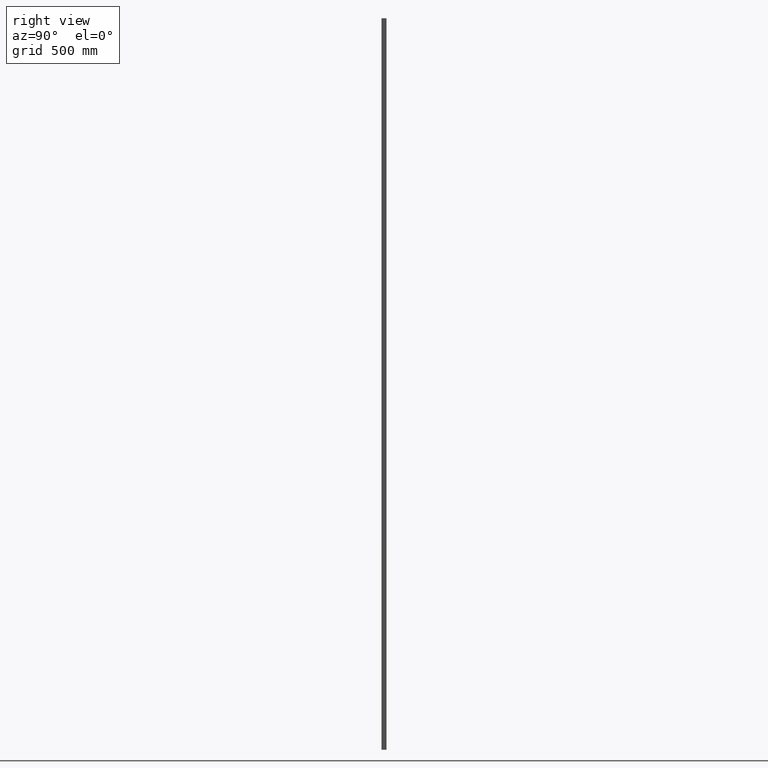
[diagram: clean part render]
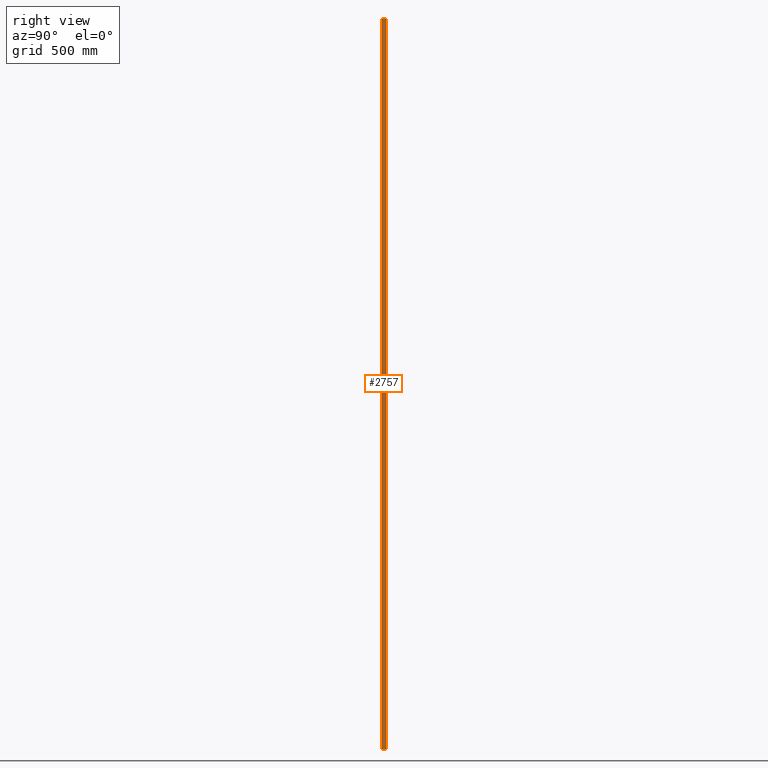
[diagram: same view with one face highlighted and labeled with its STEP entity id]
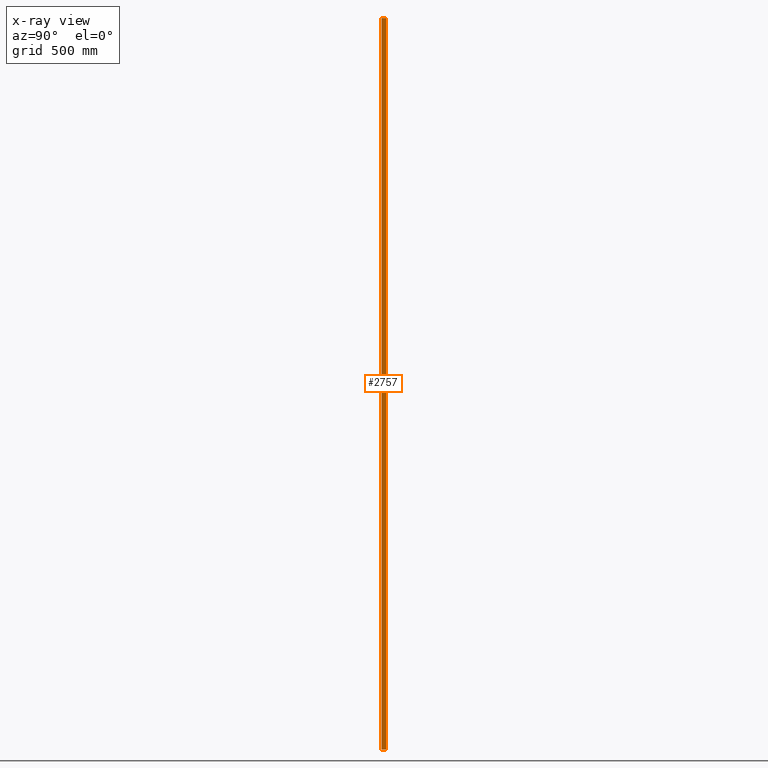
[diagram: x-ray of the same camera — body ghosted, the highlighted face saturated]
A machine part, right view. The second image highlights one B-rep face of the part: STEP entity #2757.
The next image is the same camera in x-ray: the body ghosted, the highlighted face saturated — about 0% of this face is hidden behind the body in this view.
In plain terms, the highlighted planar face has unit normal (1, 0, -0).
Its self-contained STEP definition (entity closure, byte-faithful):
#320 = EDGE_CURVE ( 'NONE', #14291, #2315, #11177, .T. ) ;
#885 = EDGE_CURVE ( 'NONE', #2315, #9297, #13566, .T. ) ;
#1048 = DIRECTION ( 'NONE',  ( 1.982541115402065100E-016, -1.000000000000000000, 0.0000000000000000000 ) ) ;
#2226 = DIRECTION ( 'NONE',  ( 1.982541115402065100E-016, -1.000000000000000000, 0.0000000000000000000 ) ) ;
#2315 = VERTEX_POINT ( 'NONE', #11719 ) ;
#2339 = CARTESIAN_POINT ( 'NONE',  ( 12.00000000000000000, 0.5000000000000027800, 1500.000000000000000 ) ) ;
#2729 = VECTOR ( 'NONE', #1048, 1000.000000000000000 ) ;
#2757 = ADVANCED_FACE ( 'NONE', ( #12967 ), #9476, .T. ) ;
#2950 = CARTESIAN_POINT ( 'NONE',  ( 11.99999999999999300, 18.00000000000000700, 1500.000000000000000 ) ) ;
#3410 = VECTOR ( 'NONE', #14565, 1000.000000000000000 ) ;
#3593 = VECTOR ( 'NONE', #9090, 1000.000000000000000 ) ;
#4275 = CARTESIAN_POINT ( 'NONE',  ( 12.00000000000000000, 0.5000000000000027800, -1500.000000000000000 ) ) ;
#4861 = VECTOR ( 'NONE', #2226, 1000.000000000000000 ) ;
#5687 = LINE ( 'NONE', #14415, #3410 ) ;
#5942 = CARTESIAN_POINT ( 'NONE',  ( 11.99999999999999600, 18.00000000000000700, 1500.000000000000000 ) ) ;
#7001 = DIRECTION ( 'NONE',  ( 1.000000000000000000, 1.982541115402065100E-016, -0.0000000000000000000 ) ) ;
#7044 = CARTESIAN_POINT ( 'NONE',  ( 11.99999999999999600, 18.00000000000000700, 1500.000000000000000 ) ) ;
#7114 = EDGE_CURVE ( 'NONE', #14291, #13715, #9446, .T. ) ;
#8171 = DIRECTION ( 'NONE',  ( -1.982541115402065100E-016, 1.000000000000000000, 0.0000000000000000000 ) ) ;
#8655 = ORIENTED_EDGE ( 'NONE', *, *, #885, .F. ) ;
#8711 = AXIS2_PLACEMENT_3D ( 'NONE', #5942, #7001, #8171 ) ;
#9090 = DIRECTION ( 'NONE',  ( -0.0000000000000000000, -0.0000000000000000000, -1.000000000000000000 ) ) ;
#9297 = VERTEX_POINT ( 'NONE', #4275 ) ;
#9446 = LINE ( 'NONE', #7044, #2729 ) ;
#9476 = PLANE ( 'NONE',  #8711 ) ;
#9546 = ORIENTED_EDGE ( 'NONE', *, *, #14089, .T. ) ;
#11177 = LINE ( 'NONE', #2950, #3593 ) ;
#11338 = EDGE_LOOP ( 'NONE', ( #8655, #12409, #11430, #9546 ) ) ;
#11430 = ORIENTED_EDGE ( 'NONE', *, *, #7114, .T. ) ;
#11719 = CARTESIAN_POINT ( 'NONE',  ( 11.99999999999999300, 18.00000000000000700, -1500.000000000000000 ) ) ;
#12409 = ORIENTED_EDGE ( 'NONE', *, *, #320, .F. ) ;
#12967 = FACE_OUTER_BOUND ( 'NONE', #11338, .T. ) ;
#13566 = LINE ( 'NONE', #14068, #4861 ) ;
#13715 = VERTEX_POINT ( 'NONE', #2339 ) ;
#13785 = CARTESIAN_POINT ( 'NONE',  ( 11.99999999999999300, 18.00000000000000700, 1500.000000000000000 ) ) ;
#14068 = CARTESIAN_POINT ( 'NONE',  ( 11.99999999999999600, 18.00000000000000700, -1500.000000000000000 ) ) ;
#14089 = EDGE_CURVE ( 'NONE', #13715, #9297, #5687, .T. ) ;
#14291 = VERTEX_POINT ( 'NONE', #13785 ) ;
#14415 = CARTESIAN_POINT ( 'NONE',  ( 12.00000000000000000, 0.5000000000000027800, 1500.000000000000000 ) ) ;
#14565 = DIRECTION ( 'NONE',  ( -0.0000000000000000000, -0.0000000000000000000, -1.000000000000000000 ) ) ;